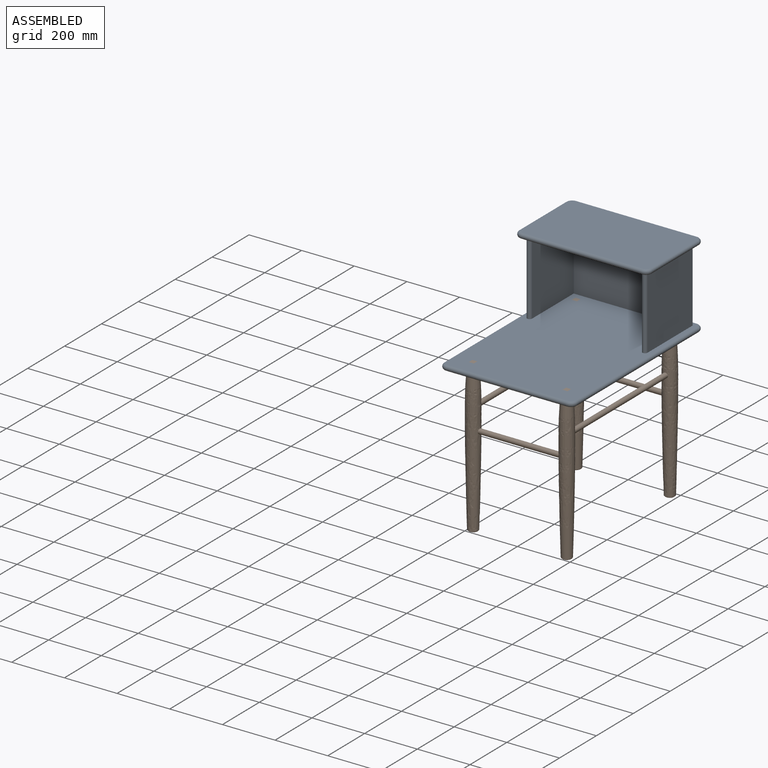
[diagram: assembled view]
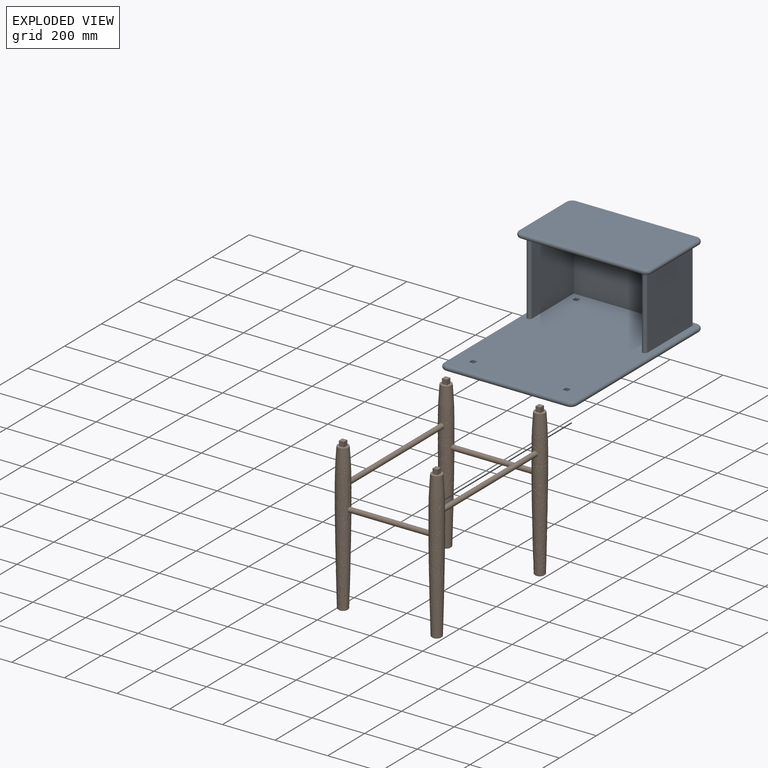
[diagram: exploded view]
GUIDED TOUR — MATED ASSEMBLY WITH SUBASSEMBLIES (Onshape document 42140cbed32f519b6c715c3e, AutoMate assembly 42140cbed32f519b6c715c3e_42d3c3906fbb0b2f734edfca_d33cc1c016509335d22bfc83_default)

This assembly has 13 component occurrences arranged in 2 top-level units: 0 individual components plus 2 subassemblies (S0, S1). The tour has two levels: first the top level, where each subassembly is treated as one rigid unit; then each subassembly is toured internally in its own section (nesting deeper than one subassembly level is flattened into its subassembly's section).

Components are labeled P0..P12 across the whole record; subassembly units are labeled S0..S1. A mate is a constraint between two units; its type names the relative motion it leaves free:
  CYLINDRICAL — leaves both rotation about and translation along the listed axis free,
  PLANAR — leaves sliding in the plane through the listed point (normal = the listed direction) and rotation about that normal free.
Axis/direction vectors are unit vectors and 'through' points are millimeter coordinates, both in the assembly's world frame.

TOP-LEVEL MATES (between units; each subassembly's internal mates are listed in its own section)
  1. PLANAR "Planar 2": S1 <-> S0, direction (0.000, -1.000, 0.000) through (-159.28, -422.03, 234.27) mm
  2. PLANAR "Planar 1": S0 <-> S1, direction (1.000, 0.000, 0.000) through (-168.81, -412.50, 243.80) mm
  3. PLANAR "Planar 3": S0 <-> S1, direction (0.000, 0.000, 1.000) through (18.52, -147.27, 243.80) mm

TOP-LEVEL ASSEMBLY ORDER
  1. S1 — the base component [order verified]
  2. S0 [order verified]
Order-tag legend:
  [order verified] — this step's position reverses a verified removal order: the component was checked to insert without passing through the ones already placed.

Of the 13 component occurrences, 9 carry the full construction recipe — the FeatureScript program that regenerates the part's solid from scratch; the rest are supplied as boundary geometry only. Each toured unit is shown spotlighted twice — assembled, then exploded with a leader line back to its socket (green = recipe-attached component, orange = geometry-only, blue = subassembly unit; the rest desaturated gray).
NOTE — this tour is split across 2 documents so each fits a 32k-token context. This is document 1: the component sections continue in the remaining 1 document, each repeating the header above.
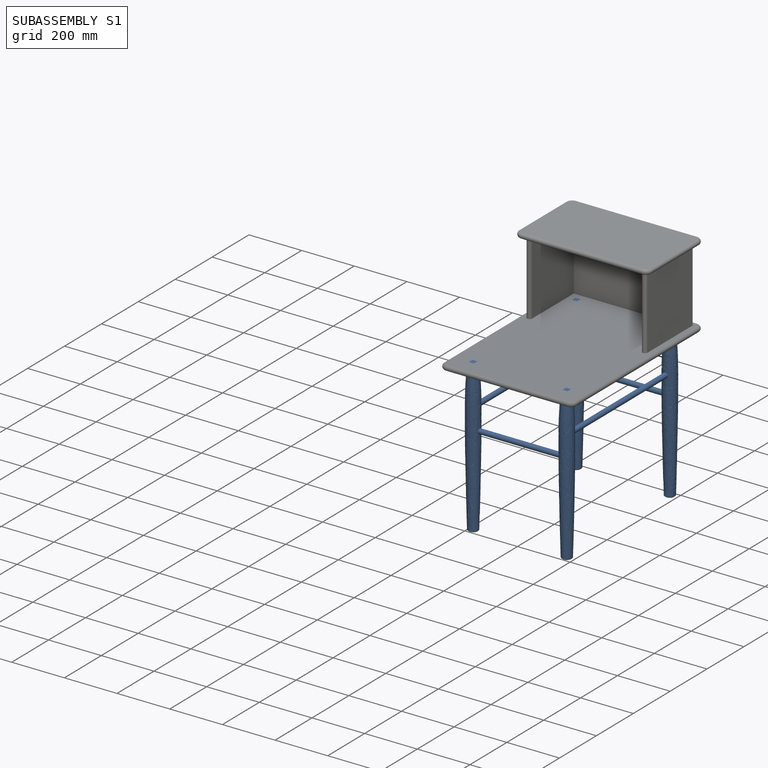
[diagram: subassembly S1 — assembled]
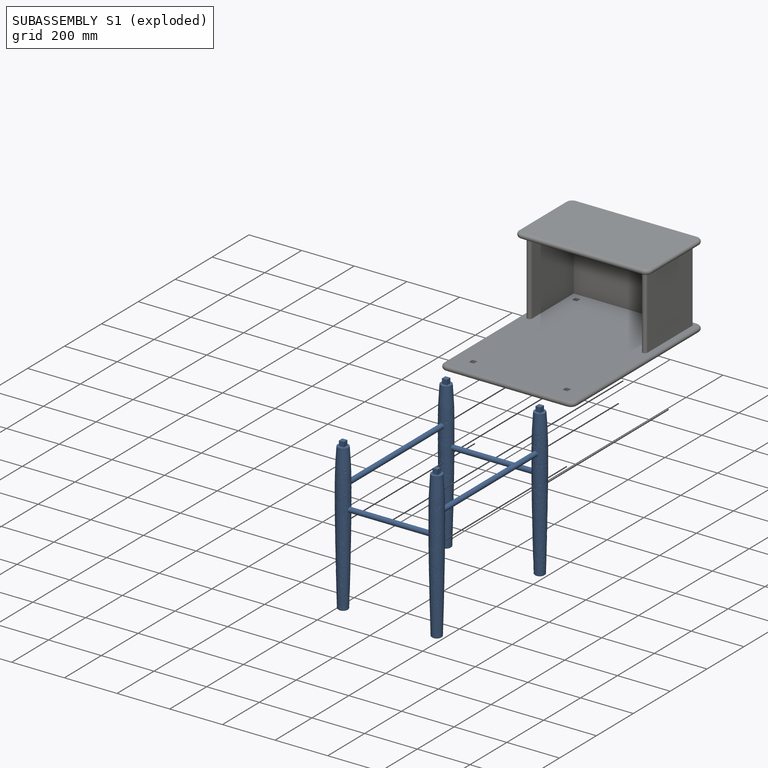
[diagram: subassembly S1 — exploded]
SUBASSEMBLY S1 — 8 components (P1, P2, P4, P7, P8, P9, P11, P12), of which 4 recipe-attached; toured below.
Held by: PLANAR mate "Planar 2" to S0; PLANAR mate "Planar 1" to S0; PLANAR mate "Planar 3" to S0.
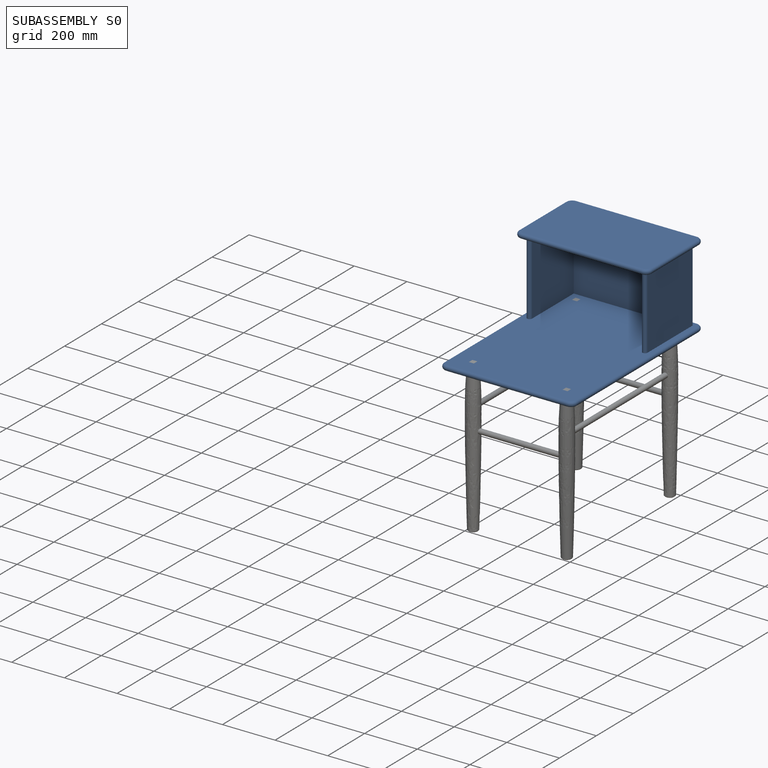
[diagram: subassembly S0 — assembled]
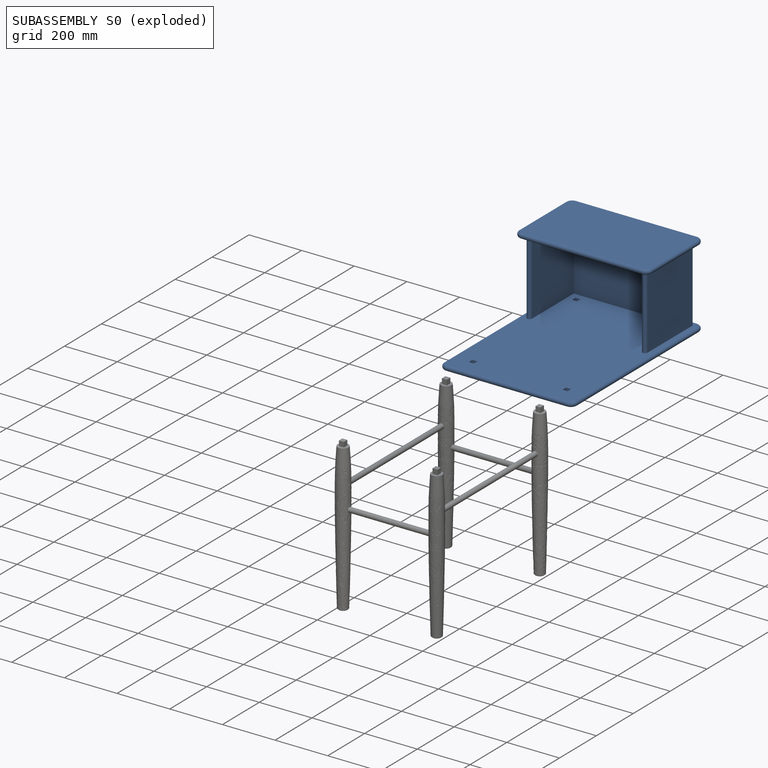
[diagram: subassembly S0 — exploded]
SUBASSEMBLY S0 — 5 components (P0, P3, P5, P6, P10), of which 5 recipe-attached; toured below.
Held by: PLANAR mate "Planar 2" to S1; PLANAR mate "Planar 1" to S1; PLANAR mate "Planar 3" to S1.
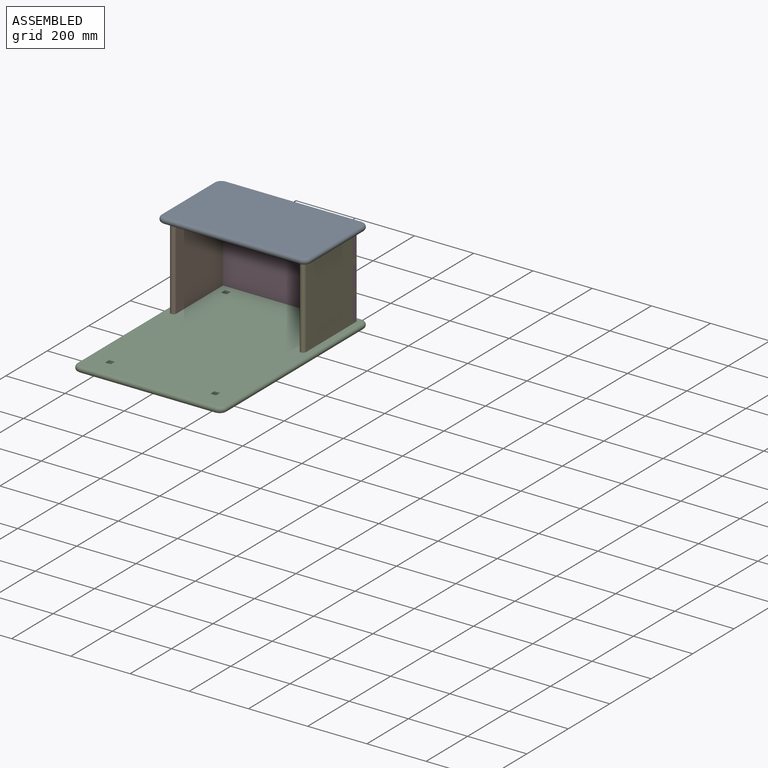
[diagram: subassembly S0 — assembled view]
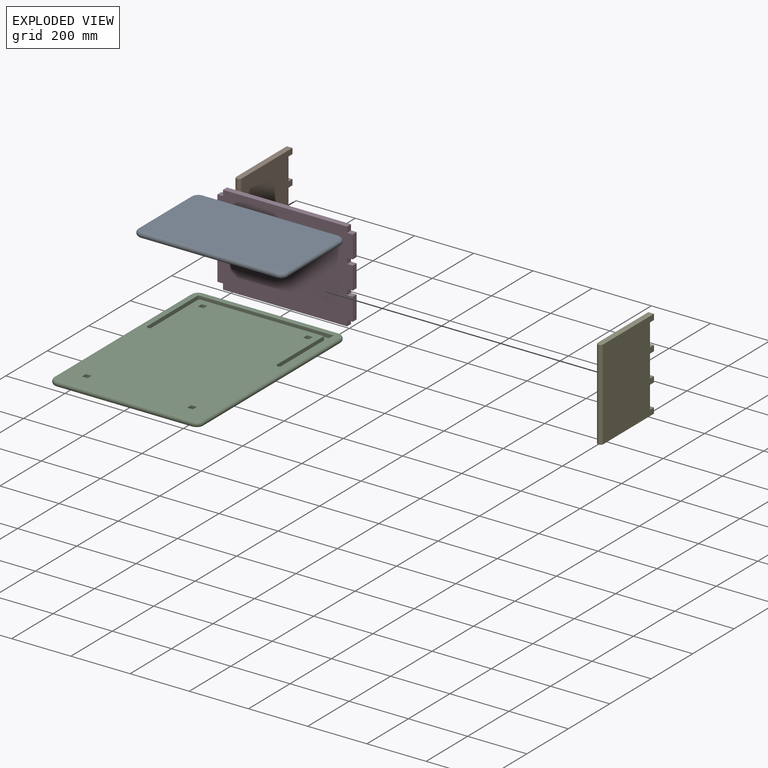
[diagram: subassembly S0 — exploded view]
SUBASSEMBLY S0 TOUR — 5 components, shown here in isolation at its own camera.

INTERNAL MATES
  1. PLANAR "Planar 3": P3 <-> P6, direction (0.000, 0.000, 1.000) through (-200.56, 71.11, 535.90) mm
  2. PLANAR "Planar 2": P6 <-> P0, direction (0.000, 1.000, 0.000) through (228.07, 197.10, 535.90) mm
  3. PLANAR "Planar 5": P10 <-> P5, direction (1.000, 0.000, 0.000) through (247.12, 67.86, 383.50) mm
  4. PLANAR "Planar 4": P6 <-> P10, direction (1.000, 0.000, 0.000) through (228.07, 187.57, 526.37) mm
  5. PLANAR "Planar 1": P3 <-> P6, direction (1.000, 0.000, 0.000) through (-191.03, 67.86, 383.50) mm
  6. PLANAR "Planar 6": P10 <-> P5, direction (0.000, 0.000, -1.000) through (237.59, 71.11, 231.10) mm
  7. PLANAR "Planar 5": P10 <-> P6, direction (0.000, 1.000, 0.000) through (237.59, 197.10, 526.37) mm
  8. PLANAR "Planar 4": P5 <-> P6, direction (0.000, -1.000, 0.000) through (18.52, 197.10, 237.45) mm
  9. PLANAR "Planar 2": P3 <-> P6, direction (0.000, 1.000, 0.000) through (-200.56, 197.10, 526.37) mm
  10. PLANAR "Planar 1": P0 <-> P3, direction (1.000, 0.000, 0.000) through (-210.08, 74.86, 529.55) mm
  11. PLANAR "Planar 6": P6 <-> P10, direction (0.000, 0.000, 1.000) through (18.52, 187.57, 535.90) mm
  12. PLANAR "Planar 3": P0 <-> P6, direction (0.000, 0.000, -1.000) through (18.52, 123.99, 535.90) mm
  13. PLANAR "Planar 5": P10 <-> P5, direction (1.000, 0.000, 0.000) through (247.12, 67.86, 383.50) mm
  14. PLANAR "Planar 5": P10 <-> P6, direction (0.000, 1.000, 0.000) through (237.59, 197.10, 526.37) mm
  15. PLANAR "Planar 4": P5 <-> P6, direction (0.000, -1.000, 0.000) through (18.52, 197.10, 237.45) mm
  16. PLANAR "Planar 6": P6 <-> P10, direction (0.000, 0.000, 1.000) through (18.52, 187.57, 535.90) mm
  17. PLANAR "Planar 2": P3 <-> P6, direction (0.000, 1.000, 0.000) through (-200.56, 197.10, 526.37) mm
  18. PLANAR "Planar 6": P10 <-> P5, direction (0.000, 0.000, -1.000) through (237.59, 71.11, 231.10) mm
  19. PLANAR "Planar 3": P0 <-> P6, direction (0.000, 0.000, -1.000) through (18.52, 123.99, 535.90) mm
  20. PLANAR "Planar 2": P6 <-> P0, direction (0.000, 1.000, 0.000) through (228.07, 197.10, 535.90) mm
  21. PLANAR "Planar 1": P0 <-> P3, direction (1.000, 0.000, 0.000) through (-210.08, 74.86, 529.55) mm
  22. PLANAR "Planar 4": P6 <-> P10, direction (1.000, 0.000, 0.000) through (228.07, 187.57, 526.37) mm
  23. PLANAR "Planar 1": P3 <-> P6, direction (1.000, 0.000, 0.000) through (-191.03, 67.86, 383.50) mm
  24. PLANAR "Planar 3": P3 <-> P6, direction (0.000, 0.000, 1.000) through (-200.56, 71.11, 535.90) mm

ASSEMBLY ORDER (within the subassembly)
  1. P6 — the base component [order verified]
  2. P0 [order verified]
  3. P5 [order verified]
  4. P10 [order verified]
  5. P3 [order verified]
Order-tag legend:
  [order verified] — this step's position reverses a verified removal order: the component was checked to insert without passing through the ones already placed.
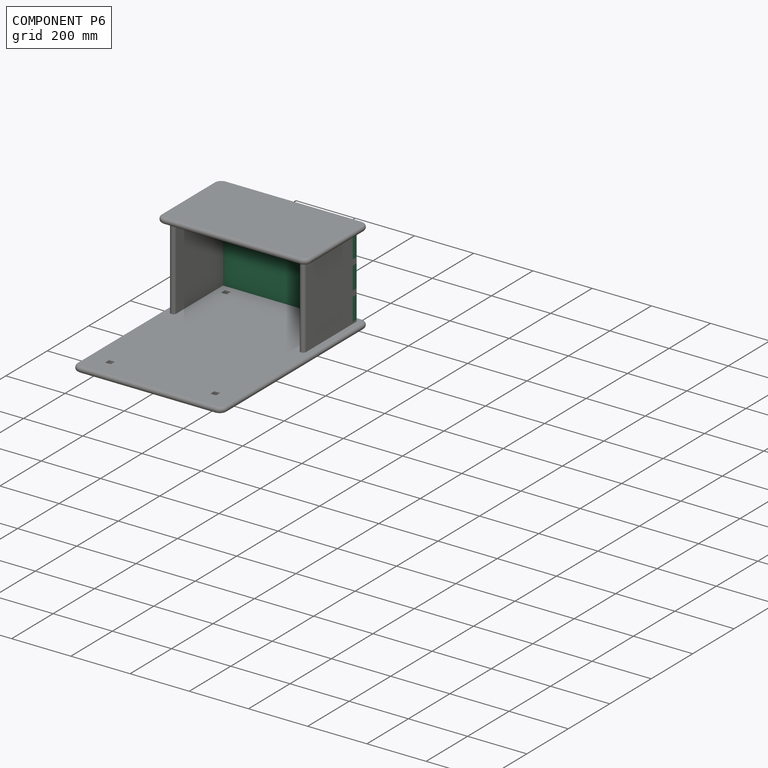
[diagram: component P6 — assembled]
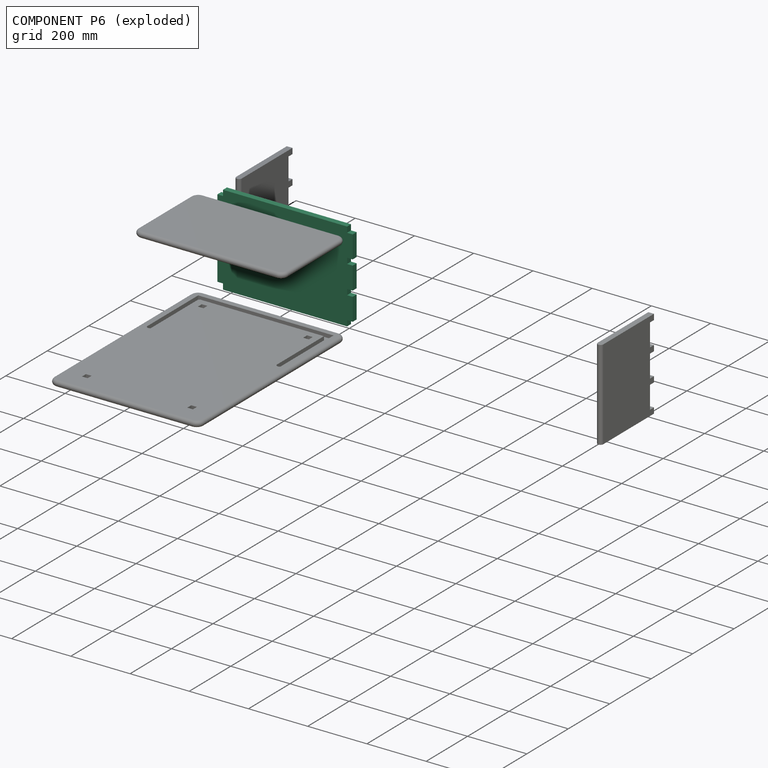
[diagram: component P6 — exploded]
COMPONENT P6 — recipe-attached (CADFS 00509530, mesh-verified: the recipe's output STEP matches this component's geometry to below the mesh-comparison resolution (tessellation chordal tolerance ~0.825 mm)).
Held by: PLANAR mate "Planar 3" to P3; PLANAR mate "Planar 2" to P0; PLANAR mate "Planar 4" to P10; PLANAR mate "Planar 1" to P3; PLANAR mate "Planar 5" to P10; PLANAR mate "Planar 4" to P5; PLANAR mate "Planar 2" to P3; PLANAR mate "Planar 6" to P10; PLANAR mate "Planar 3" to P0; PLANAR mate "Planar 5" to P10; PLANAR mate "Planar 4" to P5; PLANAR mate "Planar 6" to P10; PLANAR mate "Planar 2" to P3; PLANAR mate "Planar 3" to P0; PLANAR mate "Planar 2" to P0; PLANAR mate "Planar 4" to P10; PLANAR mate "Planar 1" to P3; PLANAR mate "Planar 3" to P3.
Construction recipe (FeatureScript — the CAD program that rebuilds this solid; sketch coordinates are in the units given by the * unit suffixes, e.g. mm):

FeatureScript 1511;
import(path : "onshape/std/geometry.fs", version : "1511.0");
import(path : "onshape/std/common.fs", version : "1511.0");
const mm = millimeter;
const VERTEX = EntityType.VERTEX;
const EDGE = EntityType.EDGE;
const FACE = EntityType.FACE;
const BODY = EntityType.BODY;
function v(x, y){return vector(x, y);}
function OD(order){return orderDisambiguation(order);}
function OSD(set){return originalSetDisambiguation(set);}
function TD(topology){return topologyDisambiguation(topology);}
function TDD(query){return trueDependencyDisambiguation(query);}
function sQuery(a, b, c) {return sketchEntityQuery(a, b, c);}

annotation { "Feature Type Name" : "Feature", "Feature Type Description" : "" }
export const myFeature = defineFeature(function(context is Context, id is Id, definition is map)
    precondition{}
    {
        {
            var Q0;
            Q0=qCreatedBy(makeId("Front.planeOp"),FACE);
            var sketch = newSketch(context, id + "F0", { "sketchPlane" : qUnion([Q0])});
            skLineSegment(sketch, "E0.bottom", {"start": v(-228.6, 152.4) * mm, "end": v(228.6, 152.4) * mm});
            skLineSegment(sketch, "E0.top", {"start": v(-228.6, -152.4) * mm, "end": v(228.6, -152.4) * mm});
            skLineSegment(sketch, "E0.left", {"start": v(-228.6, 152.4) * mm, "end": v(-228.6, -152.4) * mm});
            skLineSegment(sketch, "E0.right", {"start": v(228.6, 152.4) * mm, "end": v(228.6, -152.4) * mm});
            skPoint(sketch, "E0.middle", {"position": v(0, 0) * mm});
            skSolve(sketch);
        }
        {
            var Q0;
            Q0=makeQuery(id+"F0.imprint","IMPRINT",FACE,{"disambiguationData":[TD([[makeQuery(id+"F0.imprint","IMPRINT",EDGE,{"derivedFrom":sQuery(id+"F0.wireOp",EDGE,"E0.bottom")}),-1.0]])]});
            extrude(context, id + "F1", {"entities" : qUnion([Q0]), "endBound" : BoundingType.SYMMETRIC, "depth" : 19.05 * mm, "offsetDistance" : 25.4 * mm});
        }
        {
            var Q0;
            Q0=makeQuery(id+"F1.opExtrude","SWEPT_FACE",FACE,{"disambiguationData":[OSD([sQuery(id+"F0.wireOp",EDGE,"E0.left")])]});
            var sketch = newSketch(context, id + "F2", { "sketchPlane" : qUnion([Q0])});
            skLineSegment(sketch, "E1", {"start": v(9.53, 133.35) * mm, "end": v(-9.52, 133.35) * mm});
            skLineSegment(sketch, "E2", {"start": v(-9.53, 133.35) * mm, "end": v(-9.53, 57.15) * mm});
            skLineSegment(sketch, "E3", {"start": v(-9.53, 57.15) * mm, "end": v(9.53, 57.15) * mm});
            skLineSegment(sketch, "E4", {"start": v(9.53, 57.15) * mm, "end": v(9.53, 133.35) * mm});
            skLineSegment(sketch, "E5", {"start": v(9.53, 38.1) * mm, "end": v(-9.53, 38.1) * mm});
            skLineSegment(sketch, "E6", {"start": v(-9.53, 38.1) * mm, "end": v(-9.53, -38.1) * mm});
            skLineSegment(sketch, "E7", {"start": v(-9.53, -38.1) * mm, "end": v(9.52, -38.1) * mm});
            skLineSegment(sketch, "E8", {"start": v(9.52, -38.1) * mm, "end": v(9.52, 38.1) * mm});
            skLineSegment(sketch, "E9", {"start": v(9.53, -57.15) * mm, "end": v(-9.52, -57.15) * mm});
            skLineSegment(sketch, "E10", {"start": v(-9.53, -57.15) * mm, "end": v(-9.53, -133.35) * mm});
            skLineSegment(sketch, "E11", {"start": v(-9.52, -133.35) * mm, "end": v(9.53, -133.35) * mm});
            skLineSegment(sketch, "E12", {"start": v(9.53, -133.35) * mm, "end": v(9.53, -57.15) * mm});
            skSolve(sketch);
        }
        {
            var Q0;
            {var subQ0=sQuery(id+"F2.wireOp",EDGE,"E1");Q0=makeQuery(id+"F2.imprint","IMPRINT",FACE,{"disambiguationData":[TD([[makeQuery(id+"F2.imprint","IMPRINT",EDGE,{"derivedFrom":subQ0}),-1.0]])]});}
            var Q1;
            {var subQ0=sQuery(id+"F2.wireOp",EDGE,"E3");Q1=makeQuery(id+"F2.imprint","IMPRINT",FACE,{"disambiguationData":[TD([[makeQuery(id+"F2.imprint","IMPRINT",EDGE,{"derivedFrom":subQ0}),-1.0]])]});}
            var Q2;
            {var subQ0=sQuery(id+"F2.wireOp",EDGE,"E7");Q2=makeQuery(id+"F2.imprint","IMPRINT",FACE,{"disambiguationData":[TD([[makeQuery(id+"F2.imprint","IMPRINT",EDGE,{"derivedFrom":subQ0}),-1.0]])]});}
            var Q3;
            {var subQ0=sQuery(id+"F2.wireOp",EDGE,"E11");Q3=makeQuery(id+"F2.imprint","IMPRINT",FACE,{"disambiguationData":[TD([[makeQuery(id+"F2.imprint","IMPRINT",EDGE,{"derivedFrom":subQ0}),-1.0]])]});}
            extrude(context, id + "F3", {"entities" : qUnion([Q0, Q1, Q2, Q3]), "operationType" : NewBodyOperationType.REMOVE, "oppositeDirection" : true, "depth" : 19.05 * mm, "offsetDistance" : 25.4 * mm});
        }
        {
            var Q0;
            Q0=makeQuery(id+"F1.opExtrude","SWEPT_FACE",FACE,{"disambiguationData":[OSD([sQuery(id+"F0.wireOp",EDGE,"E0.right")])]});
            var sketch = newSketch(context, id + "F4", { "sketchPlane" : qUnion([Q0])});
            skLineSegment(sketch, "E13.bottom", {"start": v(-9.53, -133.35) * mm, "end": v(9.53, -133.35) * mm});
            skLineSegment(sketch, "E13.top", {"start": v(-9.53, -57.15) * mm, "end": v(9.53, -57.15) * mm});
            skLineSegment(sketch, "E13.left", {"start": v(-9.53, -133.35) * mm, "end": v(-9.53, -57.15) * mm});
            skLineSegment(sketch, "E13.right", {"start": v(9.53, -133.35) * mm, "end": v(9.53, -57.15) * mm});
            skLineSegment(sketch, "E14.0.1.0", {"start": v(-9.53, -38.1) * mm, "end": v(-9.53, 38.1) * mm});
            skLineSegment(sketch, "E14.0.1.1", {"start": v(-9.53, 38.1) * mm, "end": v(9.53, 38.1) * mm});
            skLineSegment(sketch, "E14.0.1.2", {"start": v(9.53, -38.1) * mm, "end": v(9.53, 38.1) * mm});
            skLineSegment(sketch, "E14.0.1.3", {"start": v(-9.53, -38.1) * mm, "end": v(9.53, -38.1) * mm});
            skLineSegment(sketch, "E14.0.2.0", {"start": v(-9.53, 57.15) * mm, "end": v(-9.53, 133.35) * mm});
            skLineSegment(sketch, "E14.0.2.1", {"start": v(-9.53, 133.35) * mm, "end": v(9.53, 133.35) * mm});
            skLineSegment(sketch, "E14.0.2.2", {"start": v(9.53, 57.15) * mm, "end": v(9.53, 133.35) * mm});
            skLineSegment(sketch, "E14.0.2.3", {"start": v(-9.53, 57.15) * mm, "end": v(9.53, 57.15) * mm});
            skLineSegment(sketch, "E14.direction1", {"start": v(-9.52, -133.35) * mm, "end": v(15.88, -133.35) * mm, "construction": true});
            skLineSegment(sketch, "E14.direction2", {"start": v(-9.53, -133.35) * mm, "end": v(-9.53, -38.1) * mm, "construction": true});
            skSolve(sketch);
        }
        {
            var Q0;
            {var subQ0=sQuery(id+"F4.wireOp",EDGE,"E14.0.2.1");Q0=makeQuery(id+"F4.imprint","IMPRINT",FACE,{"disambiguationData":[TD([[makeQuery(id+"F4.imprint","IMPRINT",EDGE,{"derivedFrom":subQ0}),1.0]])]});}
            var Q1;
            {var subQ0=sQuery(id+"F4.wireOp",EDGE,"E14.0.1.1");Q1=makeQuery(id+"F4.imprint","IMPRINT",FACE,{"disambiguationData":[TD([[makeQuery(id+"F4.imprint","IMPRINT",EDGE,{"derivedFrom":subQ0}),1.0]])]});}
            var Q2;
            {var subQ0=sQuery(id+"F4.wireOp",EDGE,"E13.top");Q2=makeQuery(id+"F4.imprint","IMPRINT",FACE,{"disambiguationData":[TD([[makeQuery(id+"F4.imprint","IMPRINT",EDGE,{"derivedFrom":subQ0}),1.0]])]});}
            var Q3;
            {var subQ0=sQuery(id+"F4.wireOp",EDGE,"E13.bottom");Q3=makeQuery(id+"F4.imprint","IMPRINT",FACE,{"disambiguationData":[TD([[makeQuery(id+"F4.imprint","IMPRINT",EDGE,{"derivedFrom":subQ0}),-1.0]])]});}
            extrude(context, id + "F5", {"entities" : qUnion([Q0, Q1, Q2, Q3]), "operationType" : NewBodyOperationType.REMOVE, "oppositeDirection" : true, "depth" : 19.05 * mm, "offsetDistance" : 25.4 * mm});
        }
    });
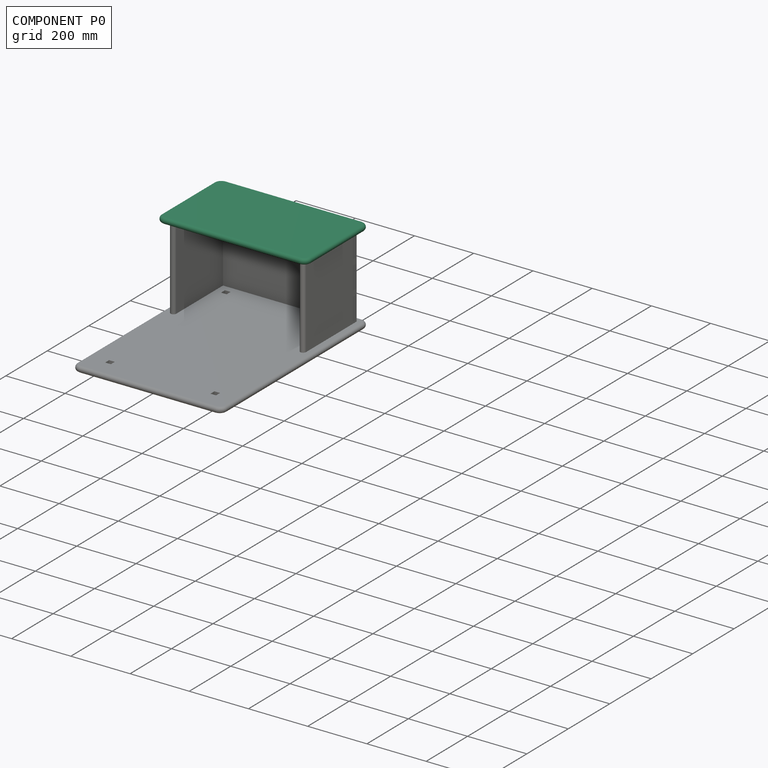
[diagram: component P0 — assembled]
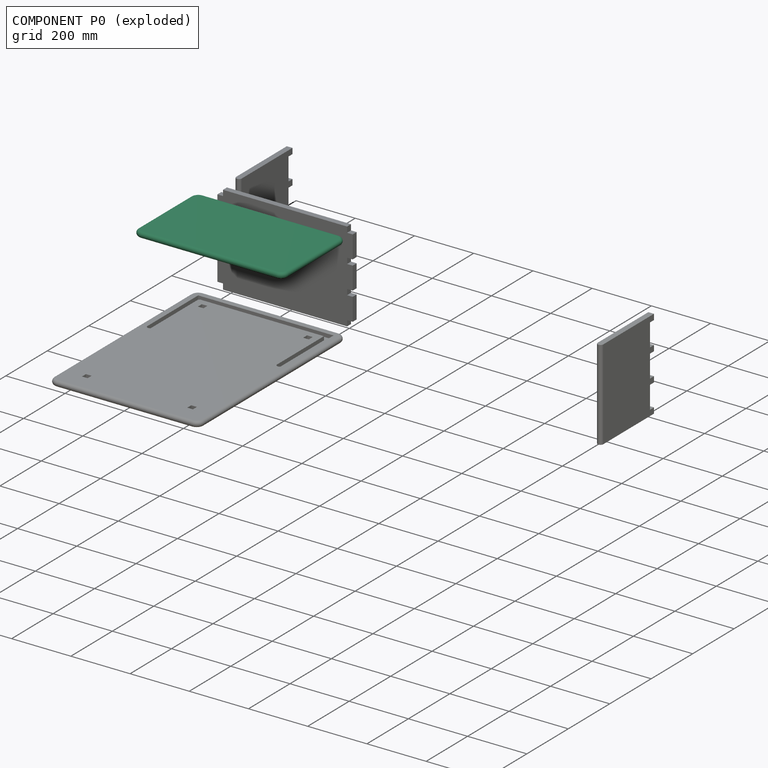
[diagram: component P0 — exploded]
COMPONENT P0 — recipe-attached (CADFS 00509532, mesh-verified: the recipe's output STEP matches this component's geometry to below the mesh-comparison resolution (tessellation chordal tolerance ~0.889 mm)).
Held by: PLANAR mate "Planar 2" to P6; PLANAR mate "Planar 1" to P3; PLANAR mate "Planar 3" to P6; PLANAR mate "Planar 3" to P6; PLANAR mate "Planar 2" to P6; PLANAR mate "Planar 1" to P3.
Construction recipe (FeatureScript — the CAD program that rebuilds this solid; sketch coordinates are in the units given by the * unit suffixes, e.g. mm):

FeatureScript 1511;
import(path : "onshape/std/geometry.fs", version : "1511.0");
import(path : "onshape/std/common.fs", version : "1511.0");
const mm = millimeter;
const VERTEX = EntityType.VERTEX;
const EDGE = EntityType.EDGE;
const FACE = EntityType.FACE;
const BODY = EntityType.BODY;
function v(x, y){return vector(x, y);}
function OD(order){return orderDisambiguation(order);}
function OSD(set){return originalSetDisambiguation(set);}
function TD(topology){return topologyDisambiguation(topology);}
function TDD(query){return trueDependencyDisambiguation(query);}
function sQuery(a, b, c) {return sketchEntityQuery(a, b, c);}

annotation { "Feature Type Name" : "Feature", "Feature Type Description" : "" }
export const myFeature = defineFeature(function(context is Context, id is Id, definition is map)
    precondition{}
    {
        {
            var Q0;
            Q0=qCreatedBy(makeId("Top.planeOp"),FACE);
            var sketch = newSketch(context, id + "F0", { "sketchPlane" : qUnion([Q0])});
            skLineSegment(sketch, "E0.bottom", {"start": v(-228.6, 152.4) * mm, "end": v(228.6, 152.4) * mm});
            skLineSegment(sketch, "E0.top", {"start": v(-228.6, -152.4) * mm, "end": v(228.6, -152.4) * mm});
            skLineSegment(sketch, "E0.left", {"start": v(-254, 127) * mm, "end": v(-254, -127) * mm});
            skLineSegment(sketch, "E0.right", {"start": v(254, 127) * mm, "end": v(254, -127) * mm});
            skPoint(sketch, "E0.middle", {"position": v(0, 0) * mm});
            skPoint(sketch, "E1.visualSharp", {"position": v(-254, 152.4) * mm});
            skPoint(sketch, "E2.visualSharp", {"position": v(-254, -152.4) * mm});
            skArc(sketch, "E2.filletArc", {"start": v(-254, -127) * mm, "mid": v(-246.56, -144.96) * mm, "end": v(-228.6, -152.4) * mm});
            skPoint(sketch, "E3.visualSharp", {"position": v(254, -152.4) * mm});
            skArc(sketch, "E3.filletArc", {"start": v(228.6, -152.4) * mm, "mid": v(246.56, -144.96) * mm, "end": v(254, -127) * mm});
            skPoint(sketch, "E4.visualSharp", {"position": v(254, 152.4) * mm});
            skArc(sketch, "E5.filletArc", {"start": v(-228.6, 152.4) * mm, "mid": v(-246.56, 144.96) * mm, "end": v(-254, 127) * mm});
            skArc(sketch, "E6.filletArc", {"start": v(254, 127) * mm, "mid": v(246.56, 144.96) * mm, "end": v(228.6, 152.4) * mm});
            skSolve(sketch);
        }
        {
            var Q0;
            Q0=makeQuery(id+"F0.imprint","IMPRINT",FACE,{"disambiguationData":[TD([[makeQuery(id+"F0.imprint","IMPRINT",EDGE,{"derivedFrom":sQuery(id+"F0.wireOp",EDGE,"E0.bottom")}),-1.0]])]});
            extrude(context, id + "F1", {"entities" : qUnion([Q0]), "endBound" : BoundingType.SYMMETRIC, "depth" : 19.05 * mm, "offsetDistance" : 25.4 * mm});
        }
        {
            var Q0;
            Q0=makeQuery(id+"F1.opExtrude","CAP_EDGE",EDGE,{"disambiguationData":[OSD([sQuery(id+"F0.wireOp",EDGE,"E0.left")])],"isStart":false});
            var Q1;
            Q1=makeQuery(id+"F1.opExtrude","CAP_EDGE",EDGE,{"disambiguationData":[OSD([sQuery(id+"F0.wireOp",EDGE,"E0.top")])],"isStart":true});
            fillet(context, id + "F2", {"entities" : qUnion([Q0, Q1]), "radius" : 9.52 * mm, "tangentPropagation" : true, "allowEdgeOverflow" : false});
        }
        {
            var Q0;
            Q0=makeQuery(id+"F1.opExtrude","CAP_FACE",FACE,{"disambiguationData":[OSD([sQuery(id+"F0.wireOp",EDGE,"E0.bottom"),sQuery(id+"F0.wireOp",EDGE,"E0.top"),sQuery(id+"F0.wireOp",EDGE,"E0.left"),sQuery(id+"F0.wireOp",EDGE,"E0.right"),sQuery(id+"F0.wireOp",EDGE,"E2.filletArc"),sQuery(id+"F0.wireOp",EDGE,"E3.filletArc")])],"isStart":true});
            var sketch = newSketch(context, id + "F3", { "sketchPlane" : qUnion([Q0])});
            skLineSegment(sketch, "E7", {"start": v(-228.6, -127) * mm, "end": v(-228.6, 117.48) * mm});
            skLineSegment(sketch, "E8", {"start": v(-219.08, 127) * mm, "end": v(-219.08, 127) * mm});
            skLineSegment(sketch, "E9", {"start": v(-209.55, 117.48) * mm, "end": v(-209.55, -107.95) * mm});
            skLineSegment(sketch, "E10", {"start": v(-209.55, -107.95) * mm, "end": v(209.55, -107.95) * mm});
            skLineSegment(sketch, "E11", {"start": v(209.55, -107.95) * mm, "end": v(209.55, 117.48) * mm});
            skLineSegment(sketch, "E12", {"start": v(228.6, 117.48) * mm, "end": v(228.6, -127) * mm});
            skLineSegment(sketch, "E13", {"start": v(228.6, -127) * mm, "end": v(-228.6, -127) * mm});
            skPoint(sketch, "E14.visualSharp", {"position": v(-228.6, 127) * mm});
            skArc(sketch, "E14.filletArc", {"start": v(-219.08, 127) * mm, "mid": v(-225.81, 124.21) * mm, "end": v(-228.6, 117.48) * mm});
            skPoint(sketch, "E15.visualSharp", {"position": v(-209.55, 127) * mm});
            skArc(sketch, "E15.filletArc", {"start": v(-209.55, 117.48) * mm, "mid": v(-212.34, 124.21) * mm, "end": v(-219.08, 127) * mm});
            skPoint(sketch, "E16.visualSharp", {"position": v(209.55, 127) * mm});
            skPoint(sketch, "E17.visualSharp", {"position": v(228.6, 127) * mm});
            skPoint(sketch, "E18.endSnap0", {"position": v(0, -142.88) * mm});
            skLineSegment(sketch, "E19.trimOffspring", {"start": v(28.57, -127) * mm, "end": v(28.57, -152.4) * mm});
            skLineSegment(sketch, "E20", {"start": v(0, 0) * mm, "end": v(209.55, 0) * mm});
            skPoint(sketch, "E20.endSnap0", {"position": v(244.47, 0) * mm});
            skLineSegment(sketch, "E21", {"start": v(219.07, 127) * mm, "end": v(219.08, 127) * mm});
            skArc(sketch, "E22.filletArc", {"start": v(219.07, 127) * mm, "mid": v(212.34, 124.21) * mm, "end": v(209.55, 117.48) * mm});
            skArc(sketch, "E23.filletArc", {"start": v(228.6, 117.48) * mm, "mid": v(225.81, 124.21) * mm, "end": v(219.08, 127) * mm});
            skSolve(sketch);
        }
        {
            var Q0;
            Q0=makeQuery(id+"F3.imprint","IMPRINT",FACE,{"disambiguationData":[TD([[makeQuery(id+"F3.imprint","IMPRINT",EDGE,{"derivedFrom":sQuery(id+"F3.wireOp",EDGE,"E7")}),-1.0]])]});
            extrude(context, id + "F4", {"entities" : qUnion([Q0]), "operationType" : NewBodyOperationType.REMOVE, "oppositeDirection" : true, "depth" : 12.7 * mm});
        }
    });
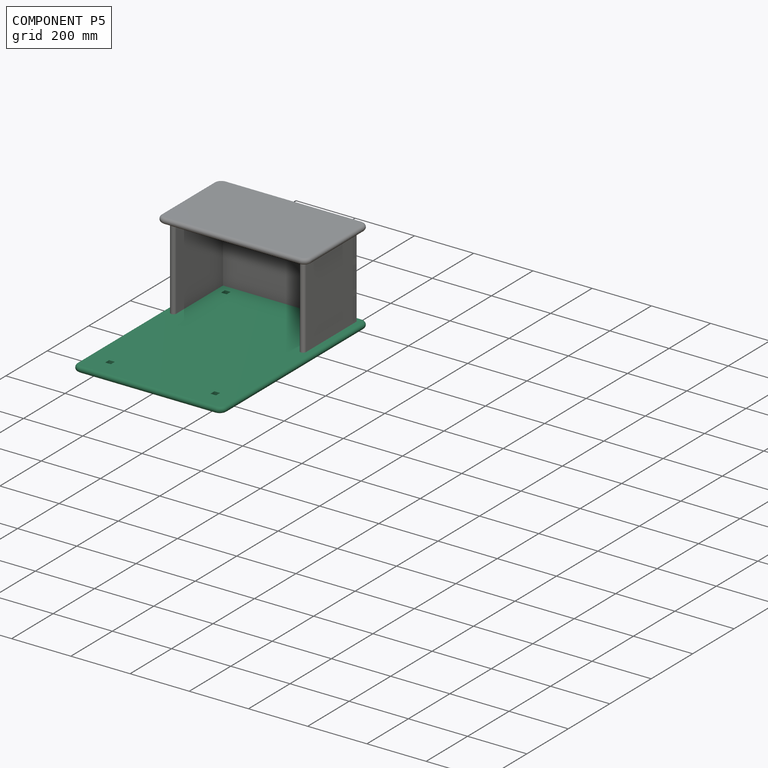
[diagram: component P5 — assembled]
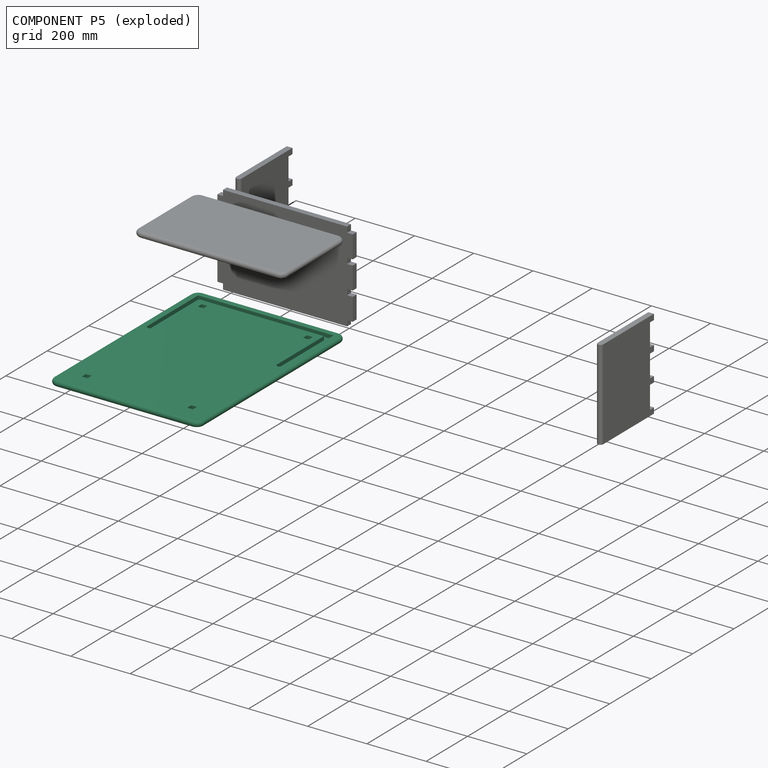
[diagram: component P5 — exploded]
COMPONENT P5 — recipe-attached (CADFS 00509526, mesh-verified: the recipe's output STEP matches this component's geometry to below the mesh-comparison resolution (tessellation chordal tolerance ~1.31 mm)).
Held by: PLANAR mate "Planar 5" to P10; PLANAR mate "Planar 6" to P10; PLANAR mate "Planar 4" to P6; PLANAR mate "Planar 5" to P10; PLANAR mate "Planar 4" to P6; PLANAR mate "Planar 6" to P10.
Construction recipe (FeatureScript — the CAD program that rebuilds this solid; sketch coordinates are in the units given by the * unit suffixes, e.g. mm):

FeatureScript 1511;
import(path : "onshape/std/geometry.fs", version : "1511.0");
import(path : "onshape/std/common.fs", version : "1511.0");
const mm = millimeter;
const VERTEX = EntityType.VERTEX;
const EDGE = EntityType.EDGE;
const FACE = EntityType.FACE;
const BODY = EntityType.BODY;
function v(x, y){return vector(x, y);}
function OD(order){return orderDisambiguation(order);}
function OSD(set){return originalSetDisambiguation(set);}
function TD(topology){return topologyDisambiguation(topology);}
function TDD(query){return trueDependencyDisambiguation(query);}
function sQuery(a, b, c) {return sketchEntityQuery(a, b, c);}

annotation { "Feature Type Name" : "Feature", "Feature Type Description" : "" }
export const myFeature = defineFeature(function(context is Context, id is Id, definition is map)
    precondition{}
    {
        {
            var Q0;
            Q0=qCreatedBy(makeId("Top.planeOp"),FACE);
            var sketch = newSketch(context, id + "F0", { "sketchPlane" : qUnion([Q0])});
            skLineSegment(sketch, "E0.bottom", {"start": v(-228.6, 355.6) * mm, "end": v(228.6, 355.6) * mm});
            skLineSegment(sketch, "E0.top", {"start": v(-228.6, -355.6) * mm, "end": v(228.6, -355.6) * mm});
            skLineSegment(sketch, "E0.left", {"start": v(-254, 330.2) * mm, "end": v(-254, -330.2) * mm});
            skLineSegment(sketch, "E0.right", {"start": v(254, 330.2) * mm, "end": v(254, -330.2) * mm});
            skPoint(sketch, "E0.middle", {"position": v(0, 0) * mm});
            skPoint(sketch, "E1.visualSharp", {"position": v(-254, 355.6) * mm});
            skPoint(sketch, "E2.visualSharp", {"position": v(254, 355.6) * mm});
            skPoint(sketch, "E3.visualSharp", {"position": v(254, -355.6) * mm});
            skArc(sketch, "E3.filletArc", {"start": v(228.6, -355.6) * mm, "mid": v(246.56, -348.16) * mm, "end": v(254, -330.2) * mm});
            skPoint(sketch, "E4.visualSharp", {"position": v(-254, -355.6) * mm});
            skArc(sketch, "E4.filletArc", {"start": v(-254, -330.2) * mm, "mid": v(-246.56, -348.16) * mm, "end": v(-228.6, -355.6) * mm});
            skArc(sketch, "E5.filletArc", {"start": v(-228.6, 355.6) * mm, "mid": v(-246.56, 348.16) * mm, "end": v(-254, 330.2) * mm});
            skArc(sketch, "E6.filletArc", {"start": v(254, 330.2) * mm, "mid": v(246.56, 348.16) * mm, "end": v(228.6, 355.6) * mm});
            skSolve(sketch);
        }
        {
            var Q0;
            Q0=makeQuery(id+"F0.imprint","IMPRINT",FACE,{"disambiguationData":[TD([[makeQuery(id+"F0.imprint","IMPRINT",EDGE,{"derivedFrom":sQuery(id+"F0.wireOp",EDGE,"E0.bottom")}),-1.0]])]});
            extrude(context, id + "F1", {"entities" : qUnion([Q0]), "endBound" : BoundingType.SYMMETRIC, "depth" : 19.05 * mm, "offsetDistance" : 25.4 * mm});
        }
        {
            var Q0;
            Q0=makeQuery(id+"F1.opExtrude","CAP_FACE",FACE,{"disambiguationData":[OSD([sQuery(id+"F0.wireOp",EDGE,"E0.bottom"),sQuery(id+"F0.wireOp",EDGE,"E0.top"),sQuery(id+"F0.wireOp",EDGE,"E0.left"),sQuery(id+"F0.wireOp",EDGE,"E0.right"),sQuery(id+"F0.wireOp",EDGE,"E3.filletArc"),sQuery(id+"F0.wireOp",EDGE,"E4.filletArc"),sQuery(id+"F0.wireOp",EDGE,"E5.filletArc"),sQuery(id+"F0.wireOp",EDGE,"E6.filletArc")])],"isStart":false});
            var Q1;
            Q1=makeQuery(id+"F1.opExtrude","CAP_FACE",FACE,{"disambiguationData":[OSD([sQuery(id+"F0.wireOp",EDGE,"E0.bottom"),sQuery(id+"F0.wireOp",EDGE,"E0.top"),sQuery(id+"F0.wireOp",EDGE,"E0.left"),sQuery(id+"F0.wireOp",EDGE,"E0.right"),sQuery(id+"F0.wireOp",EDGE,"E3.filletArc"),sQuery(id+"F0.wireOp",EDGE,"E4.filletArc"),sQuery(id+"F0.wireOp",EDGE,"E5.filletArc"),sQuery(id+"F0.wireOp",EDGE,"E6.filletArc")])],"isStart":true});
            fillet(context, id + "F2", {"entities" : qUnion([Q0, Q1]), "radius" : 9.52 * mm, "tangentPropagation" : true, "allowEdgeOverflow" : false});
        }
        {
            var Q0;
            Q0=makeQuery(id+"F1.opExtrude","CAP_FACE",FACE,{"disambiguationData":[OSD([sQuery(id+"F0.wireOp",EDGE,"E0.bottom"),sQuery(id+"F0.wireOp",EDGE,"E0.top"),sQuery(id+"F0.wireOp",EDGE,"E0.left"),sQuery(id+"F0.wireOp",EDGE,"E0.right"),sQuery(id+"F0.wireOp",EDGE,"E3.filletArc"),sQuery(id+"F0.wireOp",EDGE,"E4.filletArc")])],"isStart":false});
            var sketch = newSketch(context, id + "F3", { "sketchPlane" : qUnion([Q0])});
            skLineSegment(sketch, "E7", {"start": v(228.6, 330.2) * mm, "end": v(228.6, 85.73) * mm});
            skLineSegment(sketch, "E8", {"start": v(219.08, 76.2) * mm, "end": v(219.08, 76.2) * mm});
            skLineSegment(sketch, "E9", {"start": v(209.55, 85.73) * mm, "end": v(209.55, 311.15) * mm});
            skLineSegment(sketch, "E10", {"start": v(209.55, 311.15) * mm, "end": v(-209.55, 311.15) * mm});
            skLineSegment(sketch, "E11", {"start": v(-209.55, 311.15) * mm, "end": v(-209.55, 85.73) * mm});
            skLineSegment(sketch, "E12", {"start": v(-219.07, 76.2) * mm, "end": v(-219.07, 76.2) * mm});
            skLineSegment(sketch, "E13", {"start": v(-228.6, 85.73) * mm, "end": v(-228.6, 330.2) * mm});
            skLineSegment(sketch, "E14", {"start": v(-228.6, 330.2) * mm, "end": v(228.6, 330.2) * mm});
            skPoint(sketch, "E15.visualSharp", {"position": v(228.6, 76.2) * mm});
            skArc(sketch, "E15.filletArc", {"start": v(219.08, 76.2) * mm, "mid": v(225.81, 78.99) * mm, "end": v(228.6, 85.73) * mm});
            skPoint(sketch, "E16.visualSharp", {"position": v(209.55, 76.2) * mm});
            skArc(sketch, "E16.filletArc", {"start": v(209.55, 85.73) * mm, "mid": v(212.34, 78.99) * mm, "end": v(219.08, 76.2) * mm});
            skPoint(sketch, "E17.visualSharp", {"position": v(-209.55, 76.2) * mm});
            skArc(sketch, "E17.filletArc", {"start": v(-219.07, 76.2) * mm, "mid": v(-212.34, 78.99) * mm, "end": v(-209.55, 85.73) * mm});
            skPoint(sketch, "E18.visualSharp", {"position": v(-228.6, 76.2) * mm});
            skArc(sketch, "E18.filletArc", {"start": v(-228.6, 85.73) * mm, "mid": v(-225.81, 78.99) * mm, "end": v(-219.07, 76.2) * mm});
            skSolve(sketch);
        }
        {
            var Q0;
            Q0=makeQuery(id+"F3.imprint","IMPRINT",FACE,{"disambiguationData":[TD([[makeQuery(id+"F3.imprint","IMPRINT",EDGE,{"derivedFrom":sQuery(id+"F3.wireOp",EDGE,"E7")}),-1.0]])]});
            extrude(context, id + "F4", {"entities" : qUnion([Q0]), "operationType" : NewBodyOperationType.REMOVE, "oppositeDirection" : true, "depth" : 12.7 * mm, "offsetDistance" : 25.4 * mm});
        }
        {
            var Q0;
            Q0=makeQuery(id+"F1.opExtrude","CAP_FACE",FACE,{"disambiguationData":[OSD([sQuery(id+"F0.wireOp",EDGE,"E0.bottom"),sQuery(id+"F0.wireOp",EDGE,"E0.top"),sQuery(id+"F0.wireOp",EDGE,"E0.left"),sQuery(id+"F0.wireOp",EDGE,"E0.right"),sQuery(id+"F0.wireOp",EDGE,"E3.filletArc"),sQuery(id+"F0.wireOp",EDGE,"E4.filletArc"),sQuery(id+"F0.wireOp",EDGE,"E5.filletArc"),sQuery(id+"F0.wireOp",EDGE,"E6.filletArc")])],"isStart":false});
            var sketch = newSketch(context, id + "F5", { "sketchPlane" : qUnion([Q0])});
            skLineSegment(sketch, "E19.bottom", {"start": v(-187.33, 288.92) * mm, "end": v(-168.28, 288.92) * mm});
            skLineSegment(sketch, "E19.top", {"start": v(-187.33, 269.87) * mm, "end": v(-168.28, 269.87) * mm});
            skLineSegment(sketch, "E19.left", {"start": v(-187.33, 288.92) * mm, "end": v(-187.33, 269.87) * mm});
            skLineSegment(sketch, "E19.right", {"start": v(-168.28, 288.92) * mm, "end": v(-168.28, 269.87) * mm});
            skPoint(sketch, "E19.middle", {"position": v(-177.8, 279.4) * mm});
            skLineSegment(sketch, "E20.bottom", {"start": v(168.28, 288.93) * mm, "end": v(187.33, 288.93) * mm});
            skLineSegment(sketch, "E20.top", {"start": v(168.28, 269.88) * mm, "end": v(187.33, 269.88) * mm});
            skLineSegment(sketch, "E20.left", {"start": v(168.28, 288.93) * mm, "end": v(168.28, 269.88) * mm});
            skLineSegment(sketch, "E20.right", {"start": v(187.33, 288.93) * mm, "end": v(187.33, 269.88) * mm});
            skPoint(sketch, "E20.middle", {"position": v(177.8, 279.4) * mm});
            skLineSegment(sketch, "E21.bottom", {"start": v(-187.33, -269.88) * mm, "end": v(-168.28, -269.88) * mm});
            skLineSegment(sketch, "E21.top", {"start": v(-187.33, -288.93) * mm, "end": v(-168.28, -288.93) * mm});
            skLineSegment(sketch, "E21.left", {"start": v(-187.33, -269.88) * mm, "end": v(-187.33, -288.93) * mm});
            skLineSegment(sketch, "E21.right", {"start": v(-168.28, -269.88) * mm, "end": v(-168.28, -288.93) * mm});
            skPoint(sketch, "E21.middle", {"position": v(-177.8, -279.4) * mm});
            skLineSegment(sketch, "E22.bottom", {"start": v(168.27, -269.88) * mm, "end": v(187.32, -269.88) * mm});
            skLineSegment(sketch, "E22.top", {"start": v(168.27, -288.93) * mm, "end": v(187.32, -288.93) * mm});
            skLineSegment(sketch, "E22.left", {"start": v(168.27, -269.88) * mm, "end": v(168.27, -288.93) * mm});
            skLineSegment(sketch, "E22.right", {"start": v(187.32, -269.88) * mm, "end": v(187.32, -288.93) * mm});
            skPoint(sketch, "E22.middle", {"position": v(177.8, -279.4) * mm});
            skLineSegment(sketch, "E23", {"start": v(0, 0) * mm, "end": v(-254, 0) * mm});
            skLineSegment(sketch, "E24", {"start": v(0, 0) * mm, "end": v(254, 0) * mm});
            skSolve(sketch);
        }
        {
            var Q0;
            Q0=makeQuery(id+"F5.imprint","IMPRINT",FACE,{"disambiguationData":[TD([[makeQuery(id+"F5.imprint","IMPRINT",EDGE,{"derivedFrom":sQuery(id+"F5.wireOp",EDGE,"E19.bottom")}),-1.0]])]});
            var Q1;
            Q1=makeQuery(id+"F5.imprint","IMPRINT",FACE,{"disambiguationData":[TD([[makeQuery(id+"F5.imprint","IMPRINT",EDGE,{"derivedFrom":sQuery(id+"F5.wireOp",EDGE,"E20.bottom")}),-1.0]])]});
            var Q2;
            Q2=makeQuery(id+"F5.imprint","IMPRINT",FACE,{"disambiguationData":[TD([[makeQuery(id+"F5.imprint","IMPRINT",EDGE,{"derivedFrom":sQuery(id+"F5.wireOp",EDGE,"E21.bottom")}),-1.0]])]});
            var Q3;
            Q3=makeQuery(id+"F5.imprint","IMPRINT",FACE,{"disambiguationData":[TD([[makeQuery(id+"F5.imprint","IMPRINT",EDGE,{"derivedFrom":sQuery(id+"F5.wireOp",EDGE,"E22.bottom")}),-1.0]])]});
            extrude(context, id + "F6", {"entities" : qUnion([Q0, Q1, Q2, Q3]), "operationType" : NewBodyOperationType.REMOVE, "endBound" : BoundingType.THROUGH_ALL, "oppositeDirection" : true, "depth" : 25.4 * mm});
        }
    });
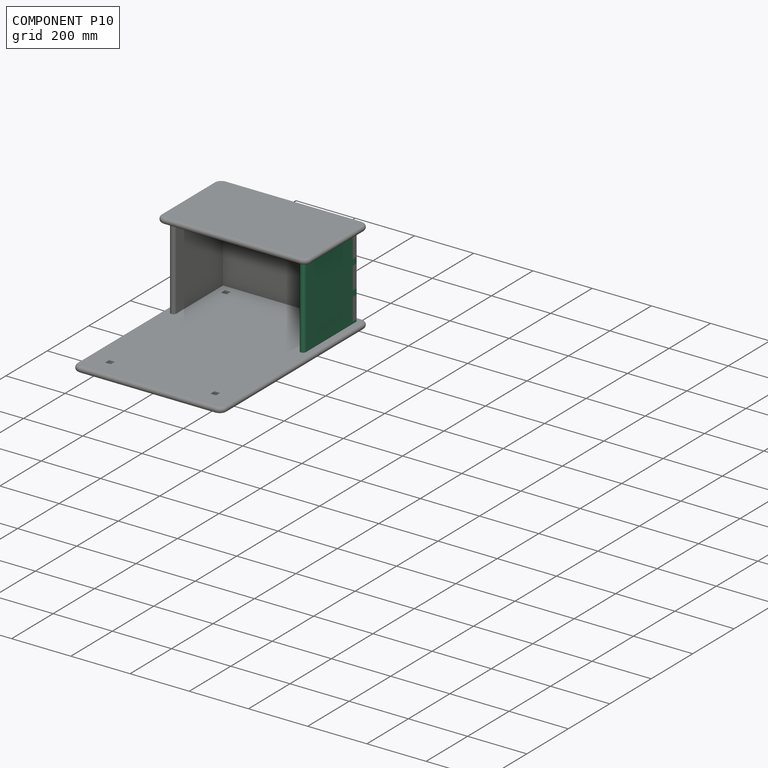
[diagram: component P10 — assembled]
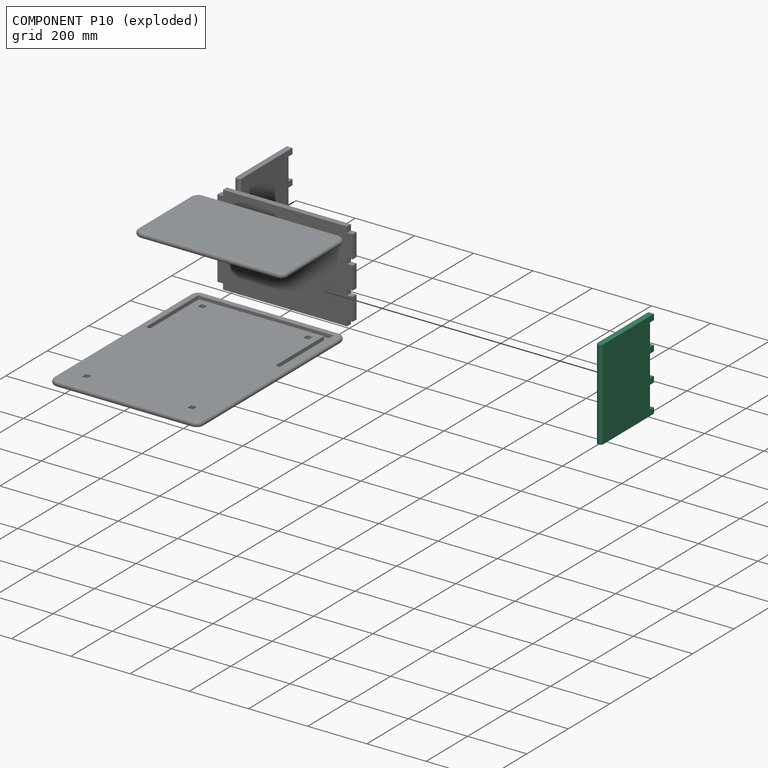
[diagram: component P10 — exploded]
COMPONENT P10 — same part as P3 (CADFS 00509528); its construction recipe is shown at P3.
Held by: PLANAR mate "Planar 5" to P5; PLANAR mate "Planar 4" to P6; PLANAR mate "Planar 6" to P5; PLANAR mate "Planar 5" to P6; PLANAR mate "Planar 6" to P6; PLANAR mate "Planar 5" to P5; PLANAR mate "Planar 5" to P6; PLANAR mate "Planar 6" to P6; PLANAR mate "Planar 6" to P5; PLANAR mate "Planar 4" to P6.
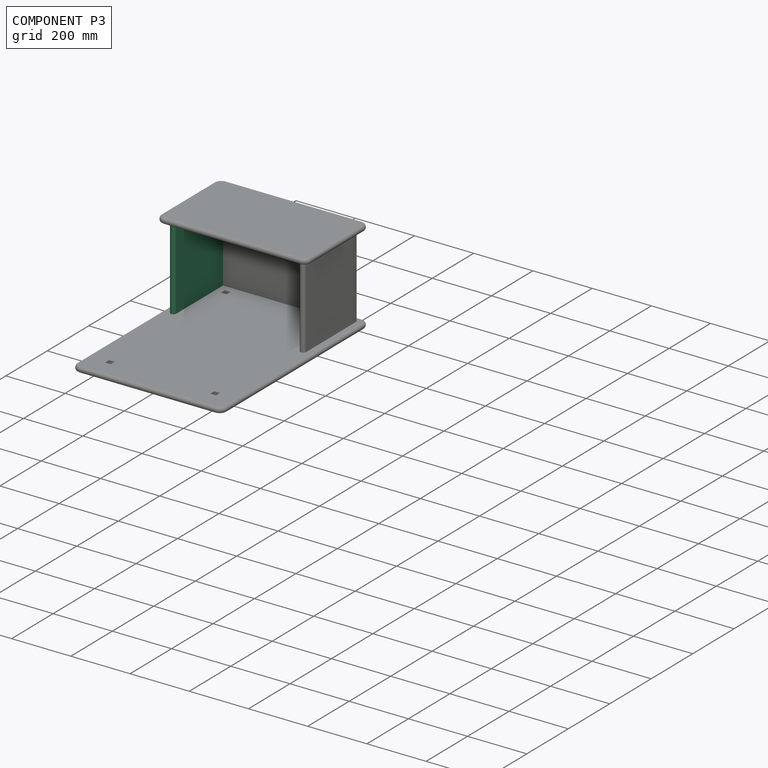
[diagram: component P3 — assembled]
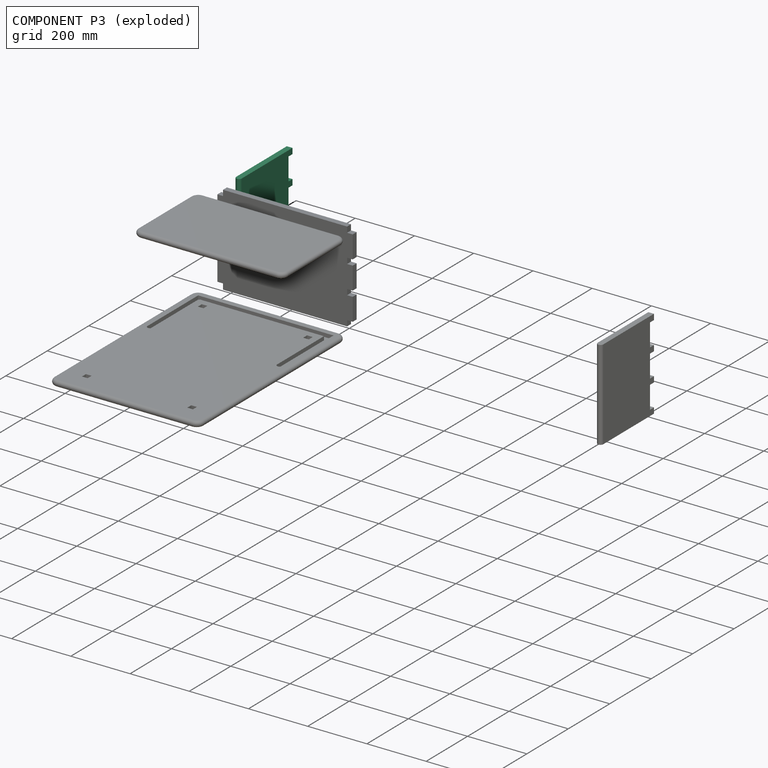
[diagram: component P3 — exploded]
COMPONENT P3 — recipe-attached (CADFS 00509528, mesh-verified: the recipe's output STEP matches this component's geometry to below the mesh-comparison resolution (tessellation chordal tolerance ~0.596 mm)).
Held by: PLANAR mate "Planar 3" to P6; PLANAR mate "Planar 1" to P6; PLANAR mate "Planar 2" to P6; PLANAR mate "Planar 1" to P0; PLANAR mate "Planar 2" to P6; PLANAR mate "Planar 1" to P0; PLANAR mate "Planar 1" to P6; PLANAR mate "Planar 3" to P6.
Construction recipe (FeatureScript — the CAD program that rebuilds this solid; sketch coordinates are in the units given by the * unit suffixes, e.g. mm):

FeatureScript 1511;
import(path : "onshape/std/geometry.fs", version : "1511.0");
import(path : "onshape/std/common.fs", version : "1511.0");
const mm = millimeter;
const VERTEX = EntityType.VERTEX;
const EDGE = EntityType.EDGE;
const FACE = EntityType.FACE;
const BODY = EntityType.BODY;
function v(x, y){return vector(x, y);}
function OD(order){return orderDisambiguation(order);}
function OSD(set){return originalSetDisambiguation(set);}
function TD(topology){return topologyDisambiguation(topology);}
function TDD(query){return trueDependencyDisambiguation(query);}
function sQuery(a, b, c) {return sketchEntityQuery(a, b, c);}

annotation { "Feature Type Name" : "Feature", "Feature Type Description" : "" }
export const myFeature = defineFeature(function(context is Context, id is Id, definition is map)
    precondition{}
    {
        {
            var Q0;
            Q0=qCreatedBy(makeId("Right.planeOp"),FACE);
            var sketch = newSketch(context, id + "F0", { "sketchPlane" : qUnion([Q0])});
            skLineSegment(sketch, "E0.bottom", {"start": v(127, 152.4) * mm, "end": v(-127, 152.4) * mm});
            skLineSegment(sketch, "E0.top", {"start": v(127, -152.4) * mm, "end": v(-127, -152.4) * mm});
            skLineSegment(sketch, "E0.left", {"start": v(127, 152.4) * mm, "end": v(127, -152.4) * mm});
            skLineSegment(sketch, "E0.right", {"start": v(-127, 152.4) * mm, "end": v(-127, -152.4) * mm});
            skPoint(sketch, "E0.middle", {"position": v(0, 0) * mm});
            skSolve(sketch);
        }
        {
            var Q0;
            Q0=makeQuery(id+"F0.imprint","IMPRINT",FACE,{"disambiguationData":[TD([[makeQuery(id+"F0.imprint","IMPRINT",EDGE,{"derivedFrom":sQuery(id+"F0.wireOp",EDGE,"E0.bottom")}),1.0]])]});
            extrude(context, id + "F1", {"entities" : qUnion([Q0]), "endBound" : BoundingType.SYMMETRIC, "depth" : 19.05 * mm, "offsetDistance" : 25.4 * mm});
        }
        {
            var Q0;
            Q0=makeQuery(id+"F1.opExtrude","CAP_EDGE",EDGE,{"disambiguationData":[OSD([sQuery(id+"F0.wireOp",EDGE,"E0.right")])],"isStart":false});
            var Q1;
            Q1=makeQuery(id+"F1.opExtrude","CAP_EDGE",EDGE,{"disambiguationData":[OSD([sQuery(id+"F0.wireOp",EDGE,"E0.right")])],"isStart":true});
            fillet(context, id + "F2", {"entities" : qUnion([Q0, Q1]), "radius" : 9.52 * mm, "tangentPropagation" : true, "allowEdgeOverflow" : false});
        }
        {
            var Q0;
            Q0=makeQuery(id+"F1.opExtrude","CAP_FACE",FACE,{"disambiguationData":[OSD([sQuery(id+"F0.wireOp",EDGE,"E0.bottom"),sQuery(id+"F0.wireOp",EDGE,"E0.top"),sQuery(id+"F0.wireOp",EDGE,"E0.left"),sQuery(id+"F0.wireOp",EDGE,"E0.right")])],"isStart":false});
            var sketch = newSketch(context, id + "F3", { "sketchPlane" : qUnion([Q0])});
            skLineSegment(sketch, "E1", {"start": v(127, 38.1) * mm, "end": v(107.95, 38.1) * mm});
            skLineSegment(sketch, "E2", {"start": v(107.95, 38.1) * mm, "end": v(107.95, -38.1) * mm});
            skLineSegment(sketch, "E3", {"start": v(127, -38.1) * mm, "end": v(107.95, -38.1) * mm});
            skLineSegment(sketch, "E4", {"start": v(127, 38.1) * mm, "end": v(127, -38.1) * mm});
            skLineSegment(sketch, "E5", {"start": v(127, 133.35) * mm, "end": v(127, 57.15) * mm});
            skLineSegment(sketch, "E6", {"start": v(127, 57.15) * mm, "end": v(107.95, 57.15) * mm});
            skLineSegment(sketch, "E7", {"start": v(107.95, 57.15) * mm, "end": v(107.95, 133.35) * mm});
            skLineSegment(sketch, "E8", {"start": v(107.95, 133.35) * mm, "end": v(127, 133.35) * mm});
            skLineSegment(sketch, "E9", {"start": v(127, -57.15) * mm, "end": v(107.95, -57.15) * mm});
            skLineSegment(sketch, "E10", {"start": v(107.95, -57.15) * mm, "end": v(107.95, -133.35) * mm});
            skLineSegment(sketch, "E11", {"start": v(107.95, -133.35) * mm, "end": v(127, -133.35) * mm});
            skLineSegment(sketch, "E12", {"start": v(127, -133.35) * mm, "end": v(127, -57.15) * mm});
            skSolve(sketch);
        }
        {
            var Q0;
            Q0=makeQuery(id+"F3.imprint","IMPRINT",FACE,{"disambiguationData":[TD([[makeQuery(id+"F3.imprint","IMPRINT",EDGE,{"derivedFrom":sQuery(id+"F3.wireOp",EDGE,"OeNe3jhJ-xBvu-Ef8x-bsDa-piqH1Yn2xPKO")}),1.0]])]});
            var Q1;
            Q1=makeQuery(id+"F3.imprint","IMPRINT",FACE,{"disambiguationData":[TD([[makeQuery(id+"F3.imprint","IMPRINT",EDGE,{"derivedFrom":sQuery(id+"F3.wireOp",EDGE,"E5")}),-1.0]])]});
            var Q2;
            Q2=makeQuery(id+"F3.imprint","IMPRINT",FACE,{"disambiguationData":[TD([[makeQuery(id+"F3.imprint","IMPRINT",EDGE,{"derivedFrom":sQuery(id+"F3.wireOp",EDGE,"E1")}),1.0]])]});
            var Q3;
            Q3=makeQuery(id+"F3.imprint","IMPRINT",FACE,{"disambiguationData":[TD([[makeQuery(id+"F3.imprint","IMPRINT",EDGE,{"derivedFrom":sQuery(id+"F3.wireOp",EDGE,"E9")}),1.0]])]});
            var Q4;
            Q4=makeQuery(id+"F3.imprint","IMPRINT",FACE,{"disambiguationData":[TD([[makeQuery(id+"F3.imprint","IMPRINT",EDGE,{"derivedFrom":sQuery(id+"F3.wireOp",EDGE,"TS4AbZqm-4lDa-HtS0-afKt-at7Nf0DAsiyh")}),1.0]])]});
            extrude(context, id + "F4", {"entities" : qUnion([Q0, Q1, Q2, Q3, Q4]), "operationType" : NewBodyOperationType.REMOVE, "endBound" : BoundingType.THROUGH_ALL, "oppositeDirection" : true, "depth" : 25.4 * mm});
        }
    });
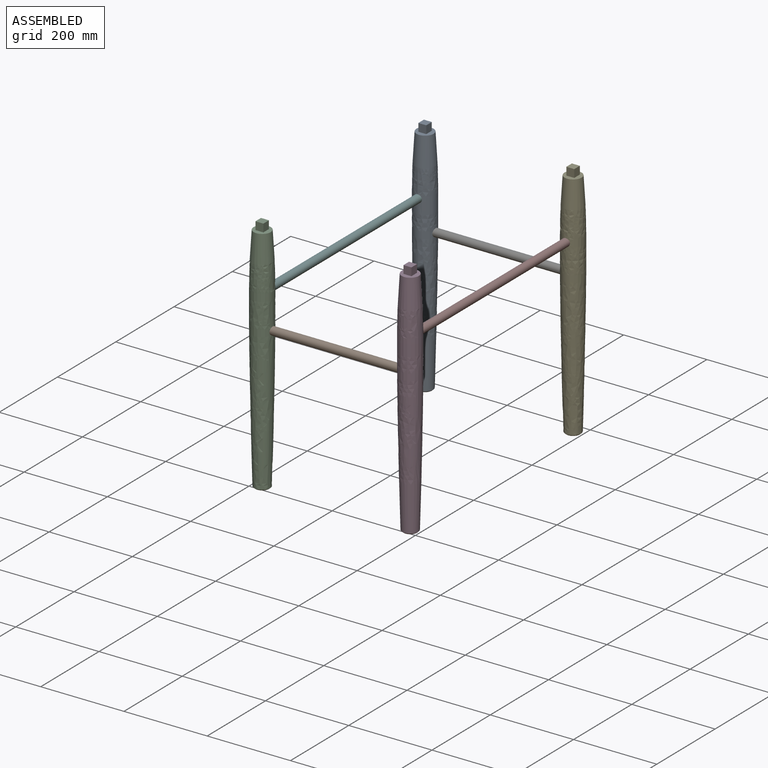
[diagram: subassembly S1 — assembled view]
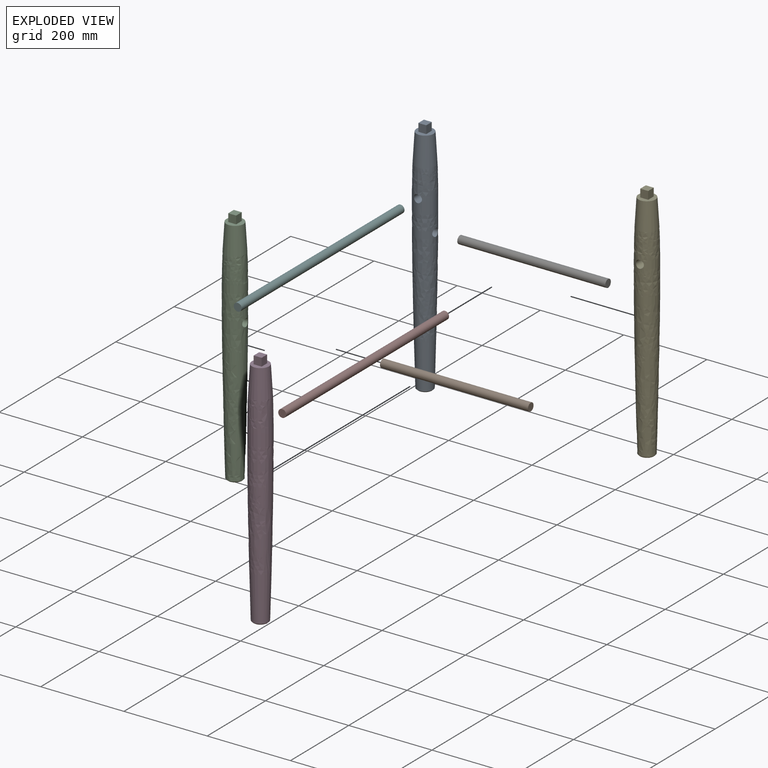
[diagram: subassembly S1 — exploded view]
SUBASSEMBLY S1 TOUR — 8 components, shown here in isolation at its own camera.

INTERNAL MATES
  1. PLANAR "Planar 4": P12 <-> P7, direction (0.000, -1.000, 0.000) through (196.32, -412.50, 88.22) mm
  2. CYLINDRICAL "Cylindrical 3": P12 <-> P8, axis (0.000, 1.000, 0.000) through (196.32, 146.30, 88.22) mm
  3. PLANAR "Planar 6": P2 <-> P7, direction (1.000, 0.000, 0.000) through (196.32, -412.50, 12.02) mm
  4. PLANAR "Planar 3": P8 <-> P12, direction (0.000, -1.000, 0.000) through (196.32, 146.30, 88.22) mm
  5. CYLINDRICAL "Cylindrical 1": P11 <-> P1, axis (-1.000, 0.000, 0.000) through (-159.28, 146.30, 12.02) mm
  6. CYLINDRICAL "Cylindrical 6": P4 <-> P2, axis (1.000, 0.000, 0.000) through (-159.28, -412.50, 12.02) mm
  7. PLANAR "Planar 5": P1 <-> P9, direction (0.000, -1.000, 0.000) through (-159.28, 146.30, 88.22) mm
  8. CYLINDRICAL "Cylindrical 4": P12 <-> P7, axis (0.000, -1.000, 0.000) through (196.32, -412.50, 88.22) mm
  9. PLANAR "Planar 2": P11 <-> P8, direction (1.000, 0.000, 0.000) through (196.32, 146.30, 12.02) mm
  10. PLANAR "Planar 1": P1 <-> P11, direction (1.000, 0.000, 0.000) through (-159.28, 146.30, 12.02) mm
  11. PLANAR "Planar 7": P4 <-> P2, direction (1.000, 0.000, 0.000) through (-159.28, -412.50, 12.02) mm
  12. CYLINDRICAL "Cylindrical 5": P1 <-> P9, axis (0.000, -1.000, 0.000) through (-159.28, 146.30, 88.22) mm
  13. CYLINDRICAL "Cylindrical 2": P11 <-> P8, axis (-1.000, 0.000, 0.000) through (196.32, 146.30, 12.02) mm
  14. CYLINDRICAL "Cylindrical 7": P2 <-> P7, axis (1.000, 0.000, 0.000) through (196.32, -412.50, 12.02) mm
  15. CYLINDRICAL "Cylindrical 1": P11 <-> P1, axis (-1.000, 0.000, 0.000) through (-159.28, 146.30, 12.02) mm
  16. PLANAR "Planar 4": P12 <-> P7, direction (0.000, -1.000, 0.000) through (196.32, -412.50, 88.22) mm
  17. CYLINDRICAL "Cylindrical 4": P12 <-> P7, axis (0.000, -1.000, 0.000) through (196.32, -412.50, 88.22) mm
  18. CYLINDRICAL "Cylindrical 3": P12 <-> P8, axis (0.000, 1.000, 0.000) through (196.32, 146.30, 88.22) mm
  19. PLANAR "Planar 6": P2 <-> P7, direction (1.000, 0.000, 0.000) through (196.32, -412.50, 12.02) mm
  20. CYLINDRICAL "Cylindrical 5": P1 <-> P9, axis (0.000, -1.000, 0.000) through (-159.28, 146.30, 88.22) mm
  21. CYLINDRICAL "Cylindrical 2": P11 <-> P8, axis (-1.000, 0.000, 0.000) through (196.32, 146.30, 12.02) mm
  22. PLANAR "Planar 1": P1 <-> P11, direction (1.000, 0.000, 0.000) through (-159.28, 146.30, 12.02) mm
  23. PLANAR "Planar 2": P11 <-> P8, direction (1.000, 0.000, 0.000) through (196.32, 146.30, 12.02) mm
  24. PLANAR "Planar 5": P1 <-> P9, direction (0.000, -1.000, 0.000) through (-159.28, 146.30, 88.22) mm
  25. CYLINDRICAL "Cylindrical 7": P2 <-> P7, axis (1.000, 0.000, 0.000) through (196.32, -412.50, 12.02) mm
  26. CYLINDRICAL "Cylindrical 6": P4 <-> P2, axis (1.000, 0.000, 0.000) through (-159.28, -412.50, 12.02) mm
  27. PLANAR "Planar 7": P4 <-> P2, direction (1.000, 0.000, 0.000) through (-159.28, -412.50, 12.02) mm
  28. PLANAR "Planar 3": P8 <-> P12, direction (0.000, -1.000, 0.000) through (196.32, 146.30, 88.22) mm

ASSEMBLY ORDER (within the subassembly)
  1. P1 — the base component [order heuristic]
  2. P9 [order heuristic]
  3. P11 [order heuristic]
  4. P8 [order heuristic]
  5. P12 [order heuristic]
  6. P7 [order heuristic]
  7. P2 [order heuristic]
  8. P4 [order heuristic]
Order-tag legend:
  [order heuristic] — this assembly is geometrically interlocked (no collision-free removal order exists), so components are listed in mate-graph order; insertion feasibility is not verified.
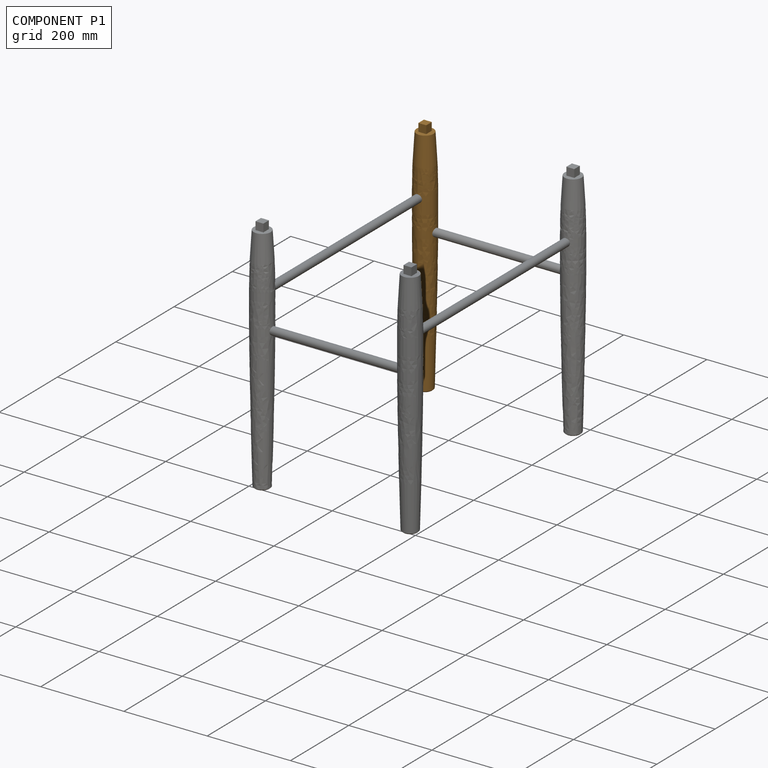
[diagram: component P1 — assembled]
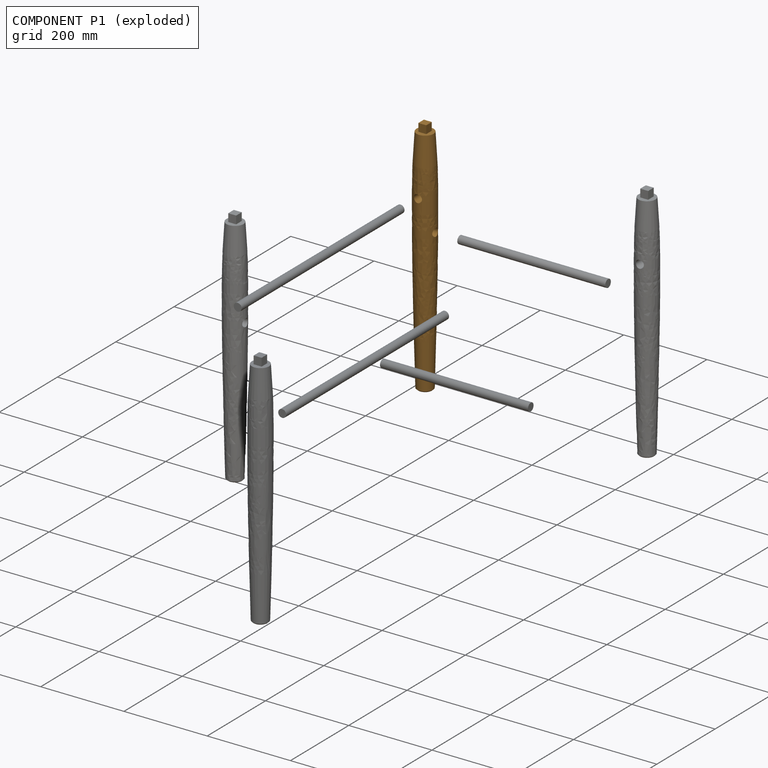
[diagram: component P1 — exploded]
COMPONENT P1 — geometry summary (no construction recipe available for this part):
  bounding box: 577.9 x 52.0 x 52.0 mm
  B-rep topology: 1 solid, 13 faces, 50 edges
  volume: 989243 mm^3 (63% of its bounding box)
Held by: CYLINDRICAL mate "Cylindrical 1" to P11; PLANAR mate "Planar 5" to P9; PLANAR mate "Planar 1" to P11; CYLINDRICAL mate "Cylindrical 5" to P9; CYLINDRICAL mate "Cylindrical 1" to P11; CYLINDRICAL mate "Cylindrical 5" to P9; PLANAR mate "Planar 1" to P11; PLANAR mate "Planar 5" to P9.
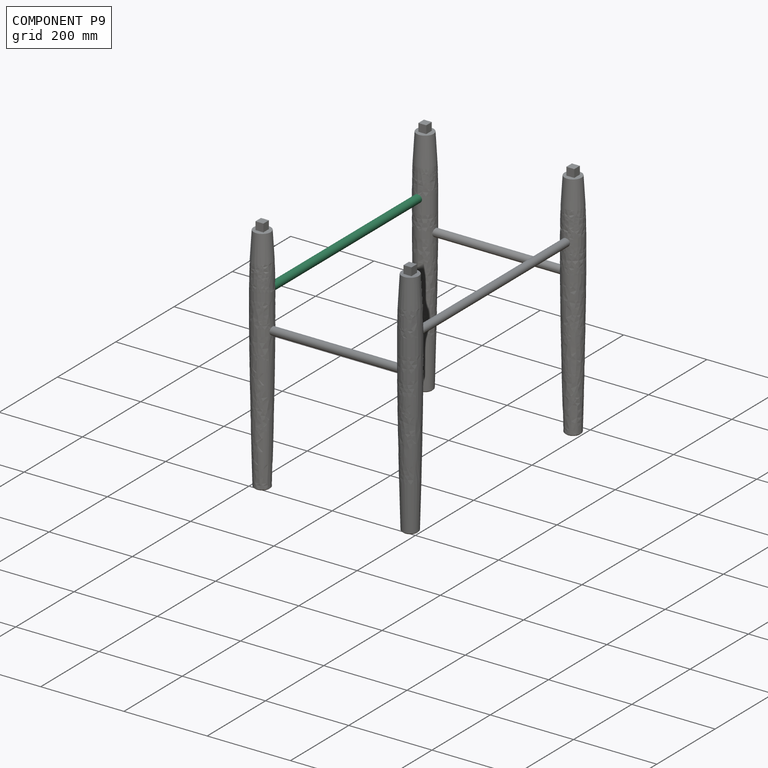
[diagram: component P9 — assembled]
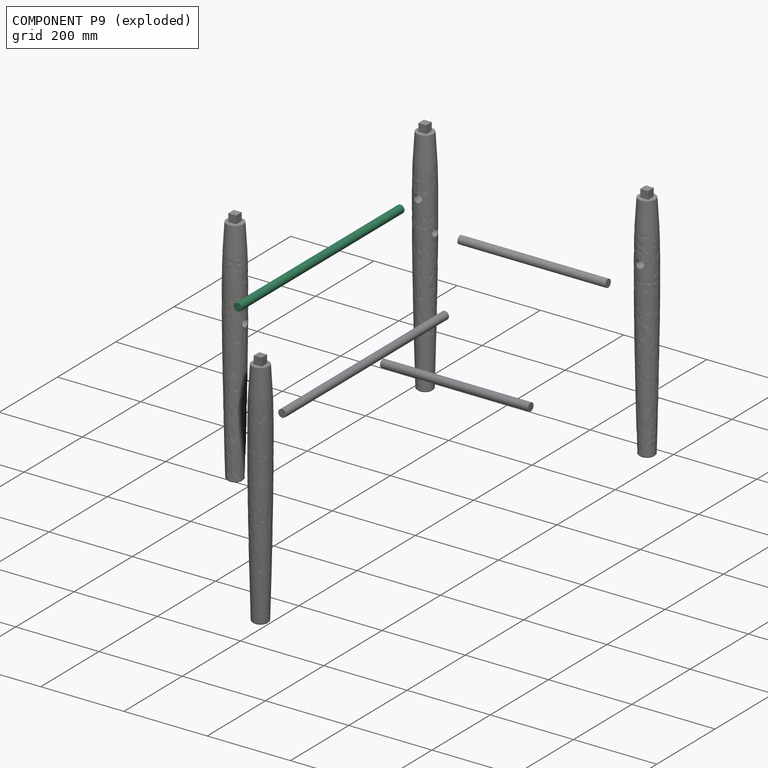
[diagram: component P9 — exploded]
COMPONENT P9 — recipe-attached (CADFS 00509534, mesh-verified: the recipe's output STEP matches this component's geometry to below the mesh-comparison resolution (tessellation chordal tolerance ~0.839 mm)).
Held by: PLANAR mate "Planar 5" to P1; CYLINDRICAL mate "Cylindrical 5" to P1; CYLINDRICAL mate "Cylindrical 5" to P1; PLANAR mate "Planar 5" to P1.
Construction recipe (FeatureScript — the CAD program that rebuilds this solid; sketch coordinates are in the units given by the * unit suffixes, e.g. mm):

FeatureScript 1511;
import(path : "onshape/std/geometry.fs", version : "1511.0");
import(path : "onshape/std/common.fs", version : "1511.0");
const mm = millimeter;
const VERTEX = EntityType.VERTEX;
const EDGE = EntityType.EDGE;
const FACE = EntityType.FACE;
const BODY = EntityType.BODY;
function v(x, y){return vector(x, y);}
function OD(order){return orderDisambiguation(order);}
function OSD(set){return originalSetDisambiguation(set);}
function TD(topology){return topologyDisambiguation(topology);}
function TDD(query){return trueDependencyDisambiguation(query);}
function sQuery(a, b, c) {return sketchEntityQuery(a, b, c);}

annotation { "Feature Type Name" : "Feature", "Feature Type Description" : "" }
export const myFeature = defineFeature(function(context is Context, id is Id, definition is map)
    precondition{}
    {
        {
            var Q0;
            Q0=qCreatedBy(makeId("Top.planeOp"),FACE);
            var sketch = newSketch(context, id + "F0", { "sketchPlane" : qUnion([Q0])});
            skLineSegment(sketch, "E0.bottom", {"start": v(9.52, 279.4) * mm, "end": v(-9.52, 279.4) * mm});
            skLineSegment(sketch, "E0.top", {"start": v(9.52, -279.4) * mm, "end": v(-9.53, -279.4) * mm});
            skLineSegment(sketch, "E0.left", {"start": v(9.53, 279.4) * mm, "end": v(9.52, -279.4) * mm});
            skLineSegment(sketch, "E0.right", {"start": v(-9.52, 279.4) * mm, "end": v(-9.53, -279.4) * mm});
            skPoint(sketch, "E0.middle", {"position": v(0, 0) * mm});
            skLineSegment(sketch, "E1", {"start": v(0, -279.4) * mm, "end": v(0, 279.4) * mm});
            skSolve(sketch);
        }
        {
            var Q0;
            {var subQ0=sQuery(id+"F0.wireOp",EDGE,"E0.right");Q0=makeQuery(id+"F0.imprint","IMPRINT",FACE,{"disambiguationData":[TD([[makeQuery(id+"F0.imprint","IMPRINT",EDGE,{"derivedFrom":subQ0}),1.0]])]});}
            var Q1;
            Q1=sQuery(id+"F0.wireOp",EDGE,"E1");
            revolve(context, id + "F1", {"entities" : qUnion([Q0]), "axis" : qUnion([Q1]), "revolveType" : RevolveType.FULL});
        }
    });
